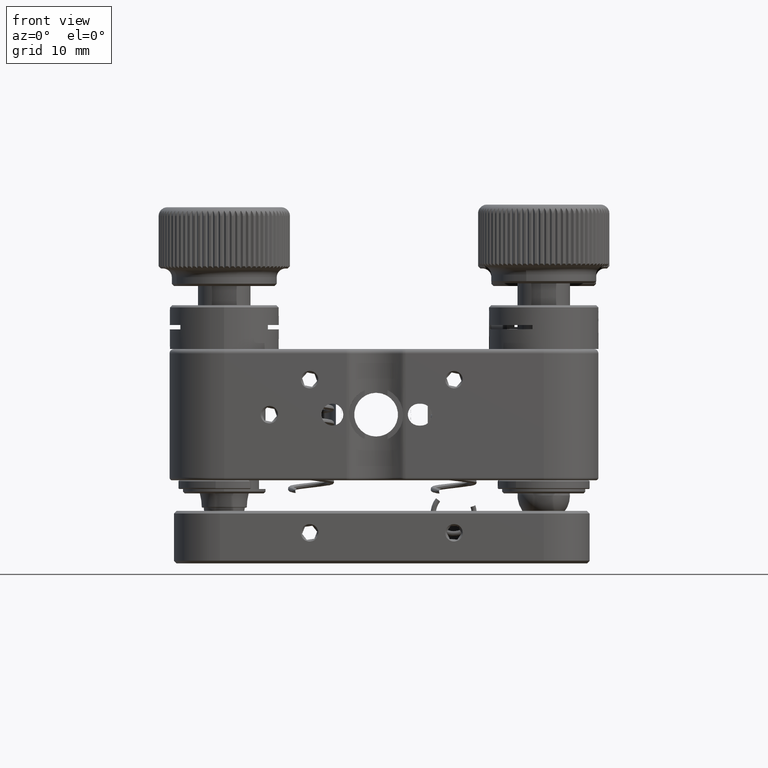
[diagram: clean part render]
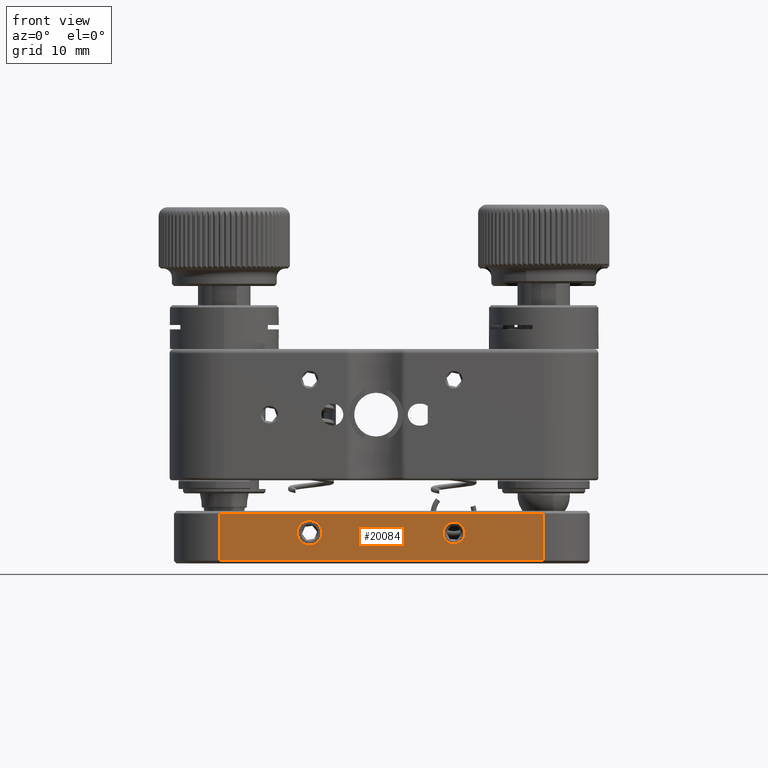
[diagram: same view with one face highlighted and labeled with its STEP entity id]
A machine part, front view. The second image highlights one B-rep face of the part: STEP entity #20084.
In plain terms, the highlighted planar face has unit normal (0, 1, 0).
Its self-contained STEP definition (entity closure, byte-faithful):
#268 = DIRECTION ( 'NONE',  ( -1.000000000000000000, 2.513473663435582751E-16, 1.727824998607864006E-16 ) ) ;
#1414 = AXIS2_PLACEMENT_3D ( 'NONE', #8078, #41258, #41544 ) ;
#1753 = AXIS2_PLACEMENT_3D ( 'NONE', #40468, #3209, #19811 ) ;
#1972 = VECTOR ( 'NONE', #16403, 1000.000000000000000 ) ;
#2303 = VERTEX_POINT ( 'NONE', #21685 ) ;
#3209 = DIRECTION ( 'NONE',  ( -4.388850394221320963E-16, -1.000000000000000000, -4.644569017313088336E-18 ) ) ;
#3896 = CIRCLE ( 'NONE', #4750, 1.249999999999988898 ) ;
#4750 = AXIS2_PLACEMENT_3D ( 'NONE', #14553, #40355, #43919 ) ;
#5435 = VERTEX_POINT ( 'NONE', #15811 ) ;
#6650 = ORIENTED_EDGE ( 'NONE', *, *, #37148, .F. ) ;
#7648 = FACE_BOUND ( 'NONE', #25252, .T. ) ;
#8078 = CARTESIAN_POINT ( 'NONE',  ( -8.499999999999980460, -23.49999999999997868, -13.49999999999999289 ) ) ;
#9073 = ORIENTED_EDGE ( 'NONE', *, *, #51742, .F. ) ;
#9692 = CARTESIAN_POINT ( 'NONE',  ( 18.25000000000001066, -23.49999999999998579, -16.69999999999998508 ) ) ;
#10853 = VERTEX_POINT ( 'NONE', #39256 ) ;
#11396 = VECTOR ( 'NONE', #21471, 1000.000000000000000 ) ;
#11659 = VERTEX_POINT ( 'NONE', #9692 ) ;
#12258 = CARTESIAN_POINT ( 'NONE',  ( 18.25000000000001066, -23.49999999999998579, -11.30000000000000426 ) ) ;
#13254 = AXIS2_PLACEMENT_3D ( 'NONE', #41356, #36753, #53374 ) ;
#14324 = CARTESIAN_POINT ( 'NONE',  ( 6.750000000000028422, -23.49999999999998579, -13.49999999999999467 ) ) ;
#14553 = CARTESIAN_POINT ( 'NONE',  ( 8.000000000000017764, -23.49999999999998579, -13.49999999999999467 ) ) ;
#14855 = ORIENTED_EDGE ( 'NONE', *, *, #43715, .F. ) ;
#15811 = CARTESIAN_POINT ( 'NONE',  ( -18.74999999999997868, -23.49999999999998224, -16.69999999999998153 ) ) ;
#16403 = DIRECTION ( 'NONE',  ( -1.727824998607864006E-16, 4.644569017313163832E-18, -1.000000000000000000 ) ) ;
#18156 = EDGE_LOOP ( 'NONE', ( #32935, #6650 ) ) ;
#18491 = EDGE_CURVE ( 'NONE', #5435, #11659, #42416, .T. ) ;
#19811 = DIRECTION ( 'NONE',  ( 1.000000000000000000, 0.000000000000000000, 0.000000000000000000 ) ) ;
#19845 = EDGE_CURVE ( 'NONE', #40432, #5435, #51774, .T. ) ;
#20084 = ADVANCED_FACE ( 'NONE', ( #44920, #7648, #24771 ), #20154, .F. ) ;
#20154 = PLANE ( 'NONE',  #13254 ) ;
#21471 = DIRECTION ( 'NONE',  ( 1.000000000000000000, -2.513473663435582751E-16, -1.727824998607864006E-16 ) ) ;
#21685 = CARTESIAN_POINT ( 'NONE',  ( -9.749999999999968026, -23.49999999999997868, -13.49999999999999289 ) ) ;
#22855 = CARTESIAN_POINT ( 'NONE',  ( -8.499999999999980460, -23.49999999999997868, -13.49999999999999289 ) ) ;
#23135 = VECTOR ( 'NONE', #268, 1000.000000000000000 ) ;
#23534 = EDGE_CURVE ( 'NONE', #25502, #40432, #33760, .T. ) ;
#24771 = FACE_OUTER_BOUND ( 'NONE', #51870, .T. ) ;
#25252 = EDGE_LOOP ( 'NONE', ( #9073, #53629 ) ) ;
#25502 = VERTEX_POINT ( 'NONE', #39073 ) ;
#28478 = EDGE_CURVE ( 'NONE', #10853, #2303, #30859, .T. ) ;
#30859 = CIRCLE ( 'NONE', #36023, 1.249999999999988898 ) ;
#31433 = VERTEX_POINT ( 'NONE', #49186 ) ;
#32935 = ORIENTED_EDGE ( 'NONE', *, *, #28478, .F. ) ;
#33760 = LINE ( 'NONE', #12258, #23135 ) ;
#34125 = VECTOR ( 'NONE', #47692, 1000.000000000000000 ) ;
#35879 = EDGE_CURVE ( 'NONE', #37358, #31433, #38213, .T. ) ;
#36023 = AXIS2_PLACEMENT_3D ( 'NONE', #22855, #39423, #43266 ) ;
#36753 = DIRECTION ( 'NONE',  ( 2.513473663435582258E-16, 1.000000000000000000, 4.644569017313120691E-18 ) ) ;
#37148 = EDGE_CURVE ( 'NONE', #2303, #10853, #50094, .T. ) ;
#37358 = VERTEX_POINT ( 'NONE', #14324 ) ;
#37637 = CARTESIAN_POINT ( 'NONE',  ( -18.74999999999997868, -23.49999999999998224, -11.29999999999999893 ) ) ;
#38213 = CIRCLE ( 'NONE', #1753, 1.249999999999988898 ) ;
#39073 = CARTESIAN_POINT ( 'NONE',  ( 18.25000000000001066, -23.49999999999998579, -11.30000000000000426 ) ) ;
#39256 = CARTESIAN_POINT ( 'NONE',  ( -7.249999999999991118, -23.49999999999997868, -13.49999999999999289 ) ) ;
#39423 = DIRECTION ( 'NONE',  ( -4.388850394221320963E-16, -1.000000000000000000, -4.644569017313088336E-18 ) ) ;
#40355 = DIRECTION ( 'NONE',  ( -4.388850394221320963E-16, -1.000000000000000000, -4.644569017313088336E-18 ) ) ;
#40432 = VERTEX_POINT ( 'NONE', #37637 ) ;
#40468 = CARTESIAN_POINT ( 'NONE',  ( 8.000000000000017764, -23.49999999999998579, -13.49999999999999467 ) ) ;
#41258 = DIRECTION ( 'NONE',  ( -4.388850394221320963E-16, -1.000000000000000000, -4.644569017313088336E-18 ) ) ;
#41356 = CARTESIAN_POINT ( 'NONE',  ( 18.25000000000001066, -23.49999999999998579, -10.99999999999999645 ) ) ;
#41410 = LINE ( 'NONE', #53699, #1972 ) ;
#41544 = DIRECTION ( 'NONE',  ( 1.000000000000000000, 0.000000000000000000, 0.000000000000000000 ) ) ;
#42416 = LINE ( 'NONE', #51151, #11396 ) ;
#43266 = DIRECTION ( 'NONE',  ( 1.000000000000000000, 0.000000000000000000, 0.000000000000000000 ) ) ;
#43332 = CARTESIAN_POINT ( 'NONE',  ( -18.74999999999997868, -23.49999999999998224, -10.99999999999999112 ) ) ;
#43715 = EDGE_CURVE ( 'NONE', #25502, #11659, #41410, .T. ) ;
#43919 = DIRECTION ( 'NONE',  ( 1.000000000000000000, 0.000000000000000000, 0.000000000000000000 ) ) ;
#44920 = FACE_BOUND ( 'NONE', #18156, .T. ) ;
#47434 = ORIENTED_EDGE ( 'NONE', *, *, #23534, .T. ) ;
#47562 = ORIENTED_EDGE ( 'NONE', *, *, #18491, .T. ) ;
#47591 = ORIENTED_EDGE ( 'NONE', *, *, #19845, .T. ) ;
#47692 = DIRECTION ( 'NONE',  ( -1.727824998607864006E-16, 4.644569017313163832E-18, -1.000000000000000000 ) ) ;
#49186 = CARTESIAN_POINT ( 'NONE',  ( 9.250000000000007105, -23.49999999999998579, -13.49999999999999467 ) ) ;
#50094 = CIRCLE ( 'NONE', #1414, 1.249999999999988898 ) ;
#51151 = CARTESIAN_POINT ( 'NONE',  ( 18.25000000000001066, -23.49999999999998579, -16.69999999999998508 ) ) ;
#51742 = EDGE_CURVE ( 'NONE', #31433, #37358, #3896, .T. ) ;
#51774 = LINE ( 'NONE', #43332, #34125 ) ;
#51870 = EDGE_LOOP ( 'NONE', ( #14855, #47434, #47591, #47562 ) ) ;
#53374 = DIRECTION ( 'NONE',  ( -1.000000000000000000, 2.513473663435582258E-16, 1.727824998607863760E-16 ) ) ;
#53629 = ORIENTED_EDGE ( 'NONE', *, *, #35879, .F. ) ;
#53699 = CARTESIAN_POINT ( 'NONE',  ( 18.25000000000001066, -23.49999999999998579, -10.99999999999999645 ) ) ;